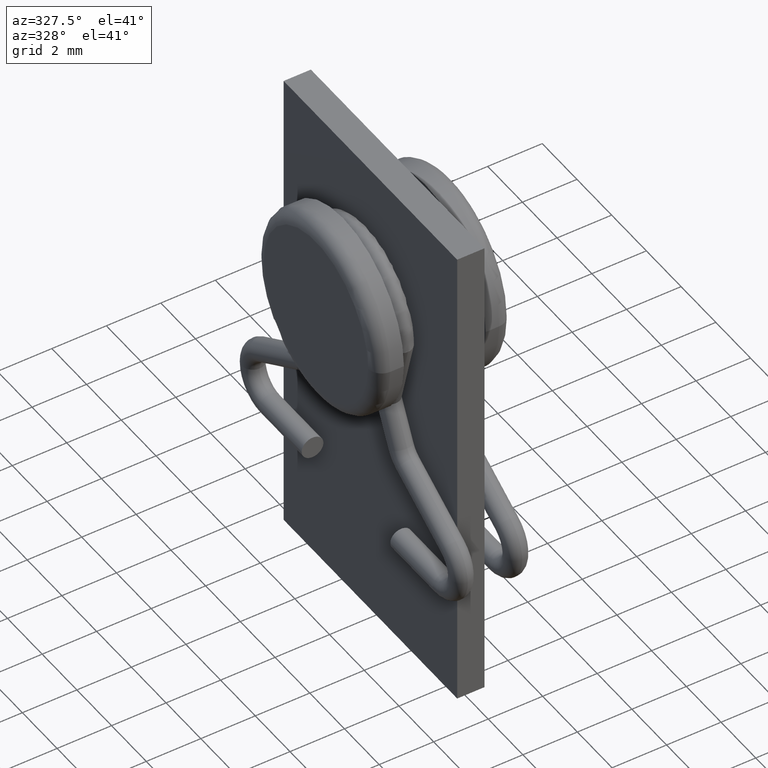
[diagram: clean part render]
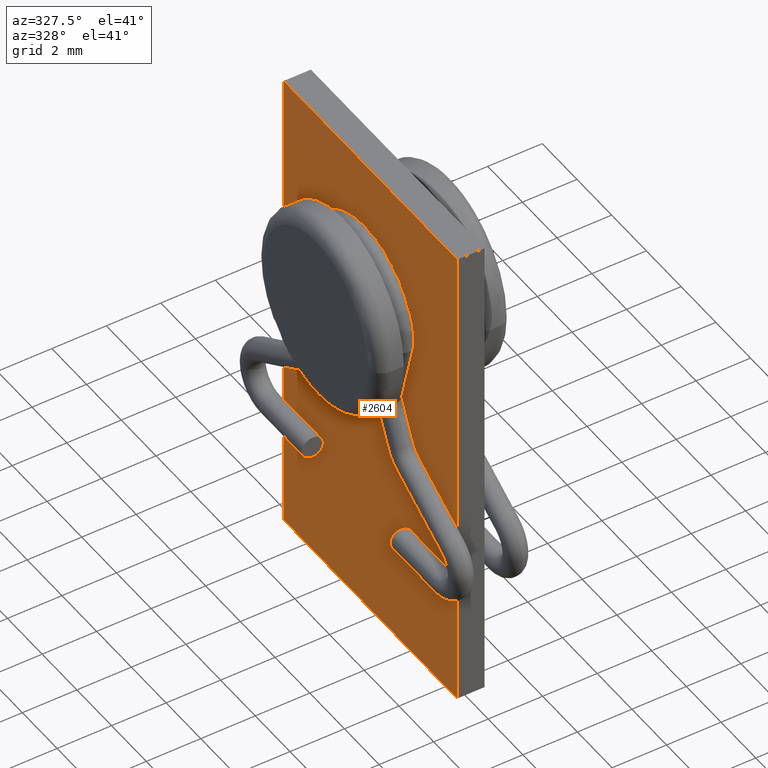
[diagram: same view with one face highlighted and labeled with its STEP entity id]
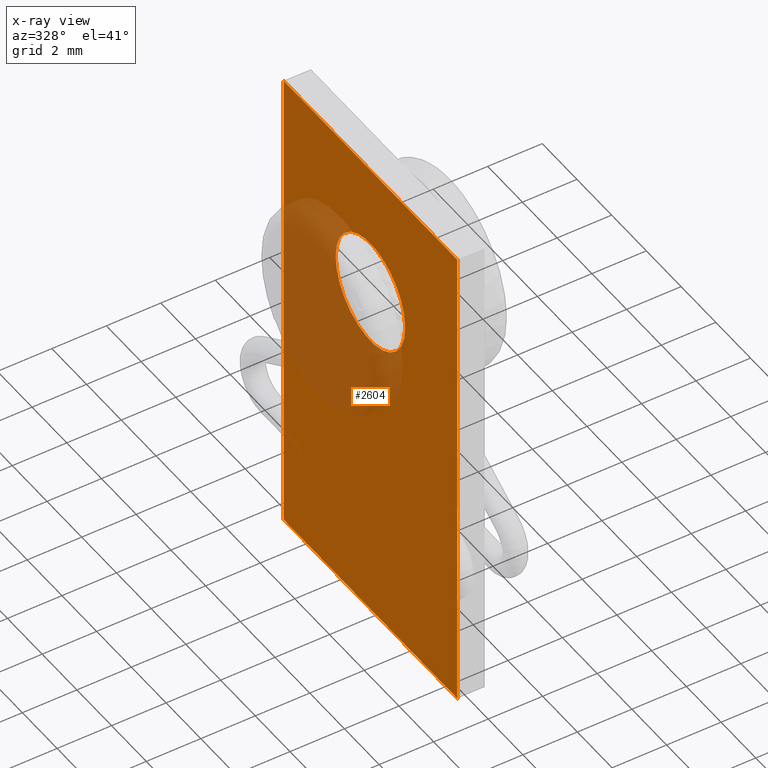
[diagram: x-ray of the same camera — body ghosted, the highlighted face saturated]
A machine part, auxiliary view. The second image highlights one B-rep face of the part: STEP entity #2604.
The next image is the same camera in x-ray: the body ghosted, the highlighted face saturated — about 21% of this face is hidden behind the body in this view.
In plain terms, the highlighted planar face has unit normal (1, 0, -0).
Its self-contained STEP definition (entity closure, byte-faithful):
#41 = DIRECTION ( 'NONE',  ( -1.084202172485504681E-16, 1.000000000000000000, 0.000000000000000000 ) ) ;
#44 = EDGE_CURVE ( 'NONE', #876, #1754, #1453, .T. ) ;
#67 = VECTOR ( 'NONE', #2267, 1000.000000000000000 ) ;
#102 = CARTESIAN_POINT ( 'NONE',  ( -0.5000000000000001110, 4.999999999999995559, 18.00000000000000000 ) ) ;
#106 = CARTESIAN_POINT ( 'NONE',  ( -0.4999999999999990563, -5.000000000000004441, 18.00000000000000000 ) ) ;
#142 = CARTESIAN_POINT ( 'NONE',  ( -0.5000000000000001110, 4.999999999999995559, 18.00000000000000000 ) ) ;
#199 = DIRECTION ( 'NONE',  ( -1.084202172485504681E-16, 1.000000000000000000, 0.000000000000000000 ) ) ;
#303 = CARTESIAN_POINT ( 'NONE',  ( -0.4999999999999993339, -1.999999999999999556, 13.00000000000000000 ) ) ;
#346 = LINE ( 'NONE', #2852, #1599 ) ;
#416 = DIRECTION ( 'NONE',  ( 1.084202172485504434E-16, -1.000000000000000000, 0.000000000000000000 ) ) ;
#556 = EDGE_CURVE ( 'NONE', #1617, #1584, #2734, .T. ) ;
#599 = FACE_BOUND ( 'NONE', #1351, .T. ) ;
#617 = LINE ( 'NONE', #2599, #2046 ) ;
#788 = AXIS2_PLACEMENT_3D ( 'NONE', #2386, #1667, #2624 ) ;
#837 = ORIENTED_EDGE ( 'NONE', *, *, #556, .F. ) ;
#876 = VERTEX_POINT ( 'NONE', #2515 ) ;
#930 = EDGE_CURVE ( 'NONE', #1988, #1584, #617, .T. ) ;
#1015 = CARTESIAN_POINT ( 'NONE',  ( -0.4999999999999990563, -5.000000000000004441, 0.000000000000000000 ) ) ;
#1022 = EDGE_LOOP ( 'NONE', ( #1427, #837, #3109, #1137 ) ) ;
#1063 = EDGE_CURVE ( 'NONE', #2679, #1617, #346, .T. ) ;
#1137 = ORIENTED_EDGE ( 'NONE', *, *, #1789, .T. ) ;
#1241 = CARTESIAN_POINT ( 'NONE',  ( -0.4999999999999995559, 6.505213034912998254E-17, 13.00000000000000000 ) ) ;
#1292 = VECTOR ( 'NONE', #1806, 1000.000000000000000 ) ;
#1294 = AXIS2_PLACEMENT_3D ( 'NONE', #2375, #2106, #199 ) ;
#1351 = EDGE_LOOP ( 'NONE', ( #2518, #1400 ) ) ;
#1400 = ORIENTED_EDGE ( 'NONE', *, *, #44, .F. ) ;
#1417 = CARTESIAN_POINT ( 'NONE',  ( -0.5000000000000001110, 4.999999999999995559, 0.000000000000000000 ) ) ;
#1427 = ORIENTED_EDGE ( 'NONE', *, *, #930, .T. ) ;
#1453 = CIRCLE ( 'NONE', #1294, 1.999999999999999556 ) ;
#1581 = FACE_OUTER_BOUND ( 'NONE', #1022, .T. ) ;
#1584 = VERTEX_POINT ( 'NONE', #1015 ) ;
#1599 = VECTOR ( 'NONE', #2399, 1000.000000000000000 ) ;
#1617 = VERTEX_POINT ( 'NONE', #2437 ) ;
#1667 = DIRECTION ( 'NONE',  ( 1.000000000000000000, 1.084202172485504434E-16, -0.000000000000000000 ) ) ;
#1754 = VERTEX_POINT ( 'NONE', #303 ) ;
#1789 = EDGE_CURVE ( 'NONE', #2679, #1988, #2730, .T. ) ;
#1806 = DIRECTION ( 'NONE',  ( -0.000000000000000000, -0.000000000000000000, -1.000000000000000000 ) ) ;
#1988 = VERTEX_POINT ( 'NONE', #1417 ) ;
#2046 = VECTOR ( 'NONE', #416, 1000.000000000000000 ) ;
#2106 = DIRECTION ( 'NONE',  ( -1.000000000000000000, -1.084202172485504434E-16, 0.000000000000000000 ) ) ;
#2199 = EDGE_CURVE ( 'NONE', #1754, #876, #3122, .T. ) ;
#2213 = DIRECTION ( 'NONE',  ( -1.000000000000000000, -1.084202172485504434E-16, 0.000000000000000000 ) ) ;
#2267 = DIRECTION ( 'NONE',  ( -0.000000000000000000, -0.000000000000000000, -1.000000000000000000 ) ) ;
#2375 = CARTESIAN_POINT ( 'NONE',  ( -0.4999999999999995559, 6.505213034912998254E-17, 13.00000000000000000 ) ) ;
#2386 = CARTESIAN_POINT ( 'NONE',  ( -0.5000000000000001110, 4.999999999999995559, 18.00000000000000000 ) ) ;
#2399 = DIRECTION ( 'NONE',  ( 1.084202172485504434E-16, -1.000000000000000000, 0.000000000000000000 ) ) ;
#2437 = CARTESIAN_POINT ( 'NONE',  ( -0.4999999999999990563, -5.000000000000004441, 18.00000000000000000 ) ) ;
#2515 = CARTESIAN_POINT ( 'NONE',  ( -0.4999999999999997780, 1.999999999999999556, 13.00000000000000000 ) ) ;
#2518 = ORIENTED_EDGE ( 'NONE', *, *, #2199, .F. ) ;
#2544 = PLANE ( 'NONE',  #788 ) ;
#2599 = CARTESIAN_POINT ( 'NONE',  ( -0.5000000000000001110, 4.999999999999995559, 0.000000000000000000 ) ) ;
#2604 = ADVANCED_FACE ( 'NONE', ( #599, #1581 ), #2544, .F. ) ;
#2624 = DIRECTION ( 'NONE',  ( -1.084202172485504434E-16, 1.000000000000000000, 0.000000000000000000 ) ) ;
#2679 = VERTEX_POINT ( 'NONE', #142 ) ;
#2730 = LINE ( 'NONE', #102, #1292 ) ;
#2734 = LINE ( 'NONE', #106, #67 ) ;
#2852 = CARTESIAN_POINT ( 'NONE',  ( -0.5000000000000001110, 4.999999999999995559, 18.00000000000000000 ) ) ;
#3012 = AXIS2_PLACEMENT_3D ( 'NONE', #1241, #2213, #41 ) ;
#3109 = ORIENTED_EDGE ( 'NONE', *, *, #1063, .F. ) ;
#3122 = CIRCLE ( 'NONE', #3012, 1.999999999999999556 ) ;